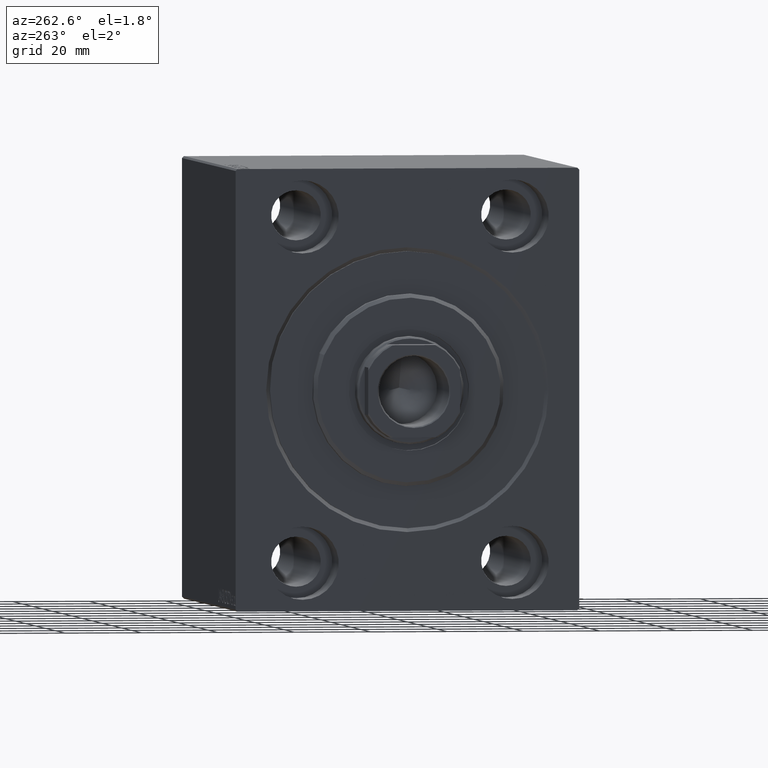
[diagram: clean part render]
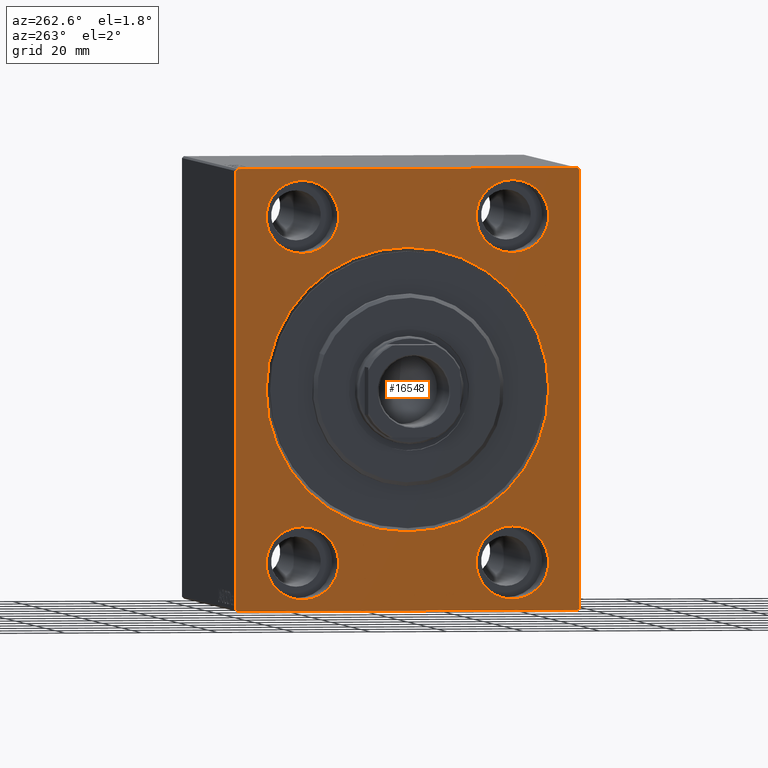
[diagram: same view with one face highlighted and labeled with its STEP entity id]
A machine part, auxiliary view. The second image highlights one B-rep face of the part: STEP entity #16548.
In plain terms, the highlighted planar face has unit normal (1, 0, 0).
Its self-contained STEP definition (entity closure, byte-faithful):
#548 = CIRCLE ( 'NONE', #23949, 9.500000000000001776 ) ;
#620 = VERTEX_POINT ( 'NONE', #1072 ) ;
#895 = ORIENTED_EDGE ( 'NONE', *, *, #31245, .F. ) ;
#976 = CARTESIAN_POINT ( 'NONE',  ( 0.000000000000000000, -27.49999999999998934, 54.50000000000000711 ) ) ;
#1030 = CIRCLE ( 'NONE', #9490, 9.500000000000001776 ) ;
#1072 = CARTESIAN_POINT ( 'NONE',  ( 0.000000000000000000, 44.50000000000001421, -57.50000000000000711 ) ) ;
#1199 = LINE ( 'NONE', #14931, #33862 ) ;
#2309 = EDGE_LOOP ( 'NONE', ( #40872, #11726 ) ) ;
#2610 = DIRECTION ( 'NONE',  ( -1.000000000000000000, 0.000000000000000000, 0.000000000000000000 ) ) ;
#2798 = ORIENTED_EDGE ( 'NONE', *, *, #36277, .F. ) ;
#2818 = VERTEX_POINT ( 'NONE', #976 ) ;
#2909 = DIRECTION ( 'NONE',  ( -1.000000000000000000, 0.000000000000000000, 0.000000000000000000 ) ) ;
#3038 = DIRECTION ( 'NONE',  ( 0.000000000000000000, 1.000000000000000000, 0.000000000000000000 ) ) ;
#3351 = LINE ( 'NONE', #16866, #6688 ) ;
#3840 = DIRECTION ( 'NONE',  ( -0.000000000000000000, -0.7071067811865474617, 0.7071067811865474617 ) ) ;
#3911 = AXIS2_PLACEMENT_3D ( 'NONE', #8046, #24674, #41735 ) ;
#4133 = CIRCLE ( 'NONE', #5513, 9.500000000000001776 ) ;
#4206 = VECTOR ( 'NONE', #42933, 1000.000000000000000 ) ;
#5490 = LINE ( 'NONE', #6139, #34567 ) ;
#5513 = AXIS2_PLACEMENT_3D ( 'NONE', #21843, #8097, #28700 ) ;
#5651 = CARTESIAN_POINT ( 'NONE',  ( 0.000000000000000000, 27.49999999999998934, -35.49999999999998579 ) ) ;
#5710 = CARTESIAN_POINT ( 'NONE',  ( 0.000000000000000000, -45.00000000000000000, 57.49999999999999289 ) ) ;
#6014 = CIRCLE ( 'NONE', #18762, 9.500000000000001776 ) ;
#6139 = CARTESIAN_POINT ( 'NONE',  ( 0.000000000000000000, -45.00000000000000000, -57.50000000000000711 ) ) ;
#6504 = LINE ( 'NONE', #17137, #31627 ) ;
#6521 = LINE ( 'NONE', #42875, #23289 ) ;
#6688 = VECTOR ( 'NONE', #40136, 1000.000000000000000 ) ;
#7088 = EDGE_CURVE ( 'NONE', #33605, #30491, #1030, .T. ) ;
#7307 = ORIENTED_EDGE ( 'NONE', *, *, #33564, .F. ) ;
#7419 = ORIENTED_EDGE ( 'NONE', *, *, #20817, .F. ) ;
#7552 = CARTESIAN_POINT ( 'NONE',  ( 0.000000000000000000, 45.00000000000001421, -57.00000000000003553 ) ) ;
#7980 = DIRECTION ( 'NONE',  ( -1.000000000000000000, 0.000000000000000000, 0.000000000000000000 ) ) ;
#8046 = CARTESIAN_POINT ( 'NONE',  ( 0.000000000000000000, 27.49999999999998934, -44.99999999999998579 ) ) ;
#8097 = DIRECTION ( 'NONE',  ( -1.000000000000000000, 0.000000000000000000, 0.000000000000000000 ) ) ;
#8399 = VERTEX_POINT ( 'NONE', #18980 ) ;
#8440 = DIRECTION ( 'NONE',  ( -1.000000000000000000, 0.000000000000000000, 0.000000000000000000 ) ) ;
#8658 = FACE_BOUND ( 'NONE', #15666, .T. ) ;
#9490 = AXIS2_PLACEMENT_3D ( 'NONE', #19531, #2909, #36356 ) ;
#10071 = EDGE_CURVE ( 'NONE', #2818, #43244, #6014, .T. ) ;
#10695 = CARTESIAN_POINT ( 'NONE',  ( 0.000000000000000000, -27.50000000000000000, -44.99999999999998579 ) ) ;
#10971 = EDGE_CURVE ( 'NONE', #32860, #8399, #18323, .T. ) ;
#10972 = ORIENTED_EDGE ( 'NONE', *, *, #30392, .T. ) ;
#11308 = EDGE_CURVE ( 'NONE', #30895, #21883, #17266, .T. ) ;
#11726 = ORIENTED_EDGE ( 'NONE', *, *, #42337, .F. ) ;
#12522 = DIRECTION ( 'NONE',  ( -0.000000000000000000, 0.7071067811865474617, -0.7071067811865474617 ) ) ;
#13273 = AXIS2_PLACEMENT_3D ( 'NONE', #10695, #41489, #30624 ) ;
#13540 = CARTESIAN_POINT ( 'NONE',  ( 0.000000000000000000, 27.50000000000001066, 35.50000000000000711 ) ) ;
#13650 = EDGE_LOOP ( 'NONE', ( #10972, #19260 ) ) ;
#13655 = CARTESIAN_POINT ( 'NONE',  ( 0.000000000000000000, -27.50000000000000000, -54.49999999999998579 ) ) ;
#14286 = DIRECTION ( 'NONE',  ( 1.000000000000000000, 0.000000000000000000, 0.000000000000000000 ) ) ;
#14420 = CARTESIAN_POINT ( 'NONE',  ( 0.000000000000000000, -44.50000000000002842, -57.50000000000000711 ) ) ;
#14455 = ORIENTED_EDGE ( 'NONE', *, *, #21863, .F. ) ;
#14931 = CARTESIAN_POINT ( 'NONE',  ( 0.000000000000000000, 45.00000000000001421, -57.50000000000000711 ) ) ;
#15317 = FACE_BOUND ( 'NONE', #37989, .T. ) ;
#15666 = EDGE_LOOP ( 'NONE', ( #18295, #2798 ) ) ;
#15743 = DIRECTION ( 'NONE',  ( 1.000000000000000000, 0.000000000000000000, 0.000000000000000000 ) ) ;
#15968 = VERTEX_POINT ( 'NONE', #38691 ) ;
#16548 = ADVANCED_FACE ( 'NONE', ( #25502, #8658, #15317, #35683, #42995, #19289 ), #18859, .F. ) ;
#16866 = CARTESIAN_POINT ( 'NONE',  ( 0.000000000000000000, 45.00000000000000000, 57.50000000000000711 ) ) ;
#17137 = CARTESIAN_POINT ( 'NONE',  ( 0.000000000000000000, -44.50000000000002842, -57.50000000000000711 ) ) ;
#17266 = CIRCLE ( 'NONE', #27896, 37.00000000000003553 ) ;
#17545 = CIRCLE ( 'NONE', #13273, 9.500000000000001776 ) ;
#17810 = DIRECTION ( 'NONE',  ( 0.000000000000000000, 0.000000000000000000, -1.000000000000000000 ) ) ;
#18100 = DIRECTION ( 'NONE',  ( -0.000000000000000000, 0.7071067811865474617, 0.7071067811865474617 ) ) ;
#18295 = ORIENTED_EDGE ( 'NONE', *, *, #43771, .F. ) ;
#18323 = LINE ( 'NONE', #39125, #30017 ) ;
#18527 = EDGE_CURVE ( 'NONE', #24056, #36037, #6504, .T. ) ;
#18762 = AXIS2_PLACEMENT_3D ( 'NONE', #27927, #7980, #18996 ) ;
#18836 = CARTESIAN_POINT ( 'NONE',  ( 0.000000000000000000, 45.00000000000000000, 57.00000000000000711 ) ) ;
#18859 = PLANE ( 'NONE',  #40741 ) ;
#18901 = CARTESIAN_POINT ( 'NONE',  ( 0.000000000000000000, 27.50000000000001066, 54.50000000000000711 ) ) ;
#18980 = CARTESIAN_POINT ( 'NONE',  ( 0.000000000000000000, -44.49999999999997158, 57.49999999999999289 ) ) ;
#18996 = DIRECTION ( 'NONE',  ( 0.000000000000000000, 0.000000000000000000, 1.000000000000000000 ) ) ;
#19260 = ORIENTED_EDGE ( 'NONE', *, *, #11308, .T. ) ;
#19289 = FACE_OUTER_BOUND ( 'NONE', #30788, .T. ) ;
#19292 = VERTEX_POINT ( 'NONE', #5651 ) ;
#19531 = CARTESIAN_POINT ( 'NONE',  ( 0.000000000000000000, 27.50000000000001066, 45.00000000000000711 ) ) ;
#19547 = CARTESIAN_POINT ( 'NONE',  ( 0.000000000000000000, -27.49999999999998934, 35.50000000000000711 ) ) ;
#19721 = CIRCLE ( 'NONE', #43782, 9.500000000000001776 ) ;
#20817 = EDGE_CURVE ( 'NONE', #43244, #2818, #23198, .T. ) ;
#21843 = CARTESIAN_POINT ( 'NONE',  ( 0.000000000000000000, 27.49999999999998934, -44.99999999999998579 ) ) ;
#21863 = EDGE_CURVE ( 'NONE', #30491, #33605, #548, .T. ) ;
#21883 = VERTEX_POINT ( 'NONE', #42854 ) ;
#21961 = DIRECTION ( 'NONE',  ( 0.000000000000000000, 0.000000000000000000, 1.000000000000000000 ) ) ;
#22131 = VERTEX_POINT ( 'NONE', #7552 ) ;
#22625 = DIRECTION ( 'NONE',  ( 0.000000000000000000, 0.000000000000000000, -1.000000000000000000 ) ) ;
#22742 = CARTESIAN_POINT ( 'NONE',  ( 0.000000000000000000, -45.00000000000000000, 56.99999999999999289 ) ) ;
#23198 = CIRCLE ( 'NONE', #26732, 9.500000000000001776 ) ;
#23289 = VECTOR ( 'NONE', #12522, 1000.000000000000114 ) ;
#23361 = EDGE_CURVE ( 'NONE', #15968, #29319, #19721, .T. ) ;
#23365 = EDGE_CURVE ( 'NONE', #24056, #620, #5490, .T. ) ;
#23571 = DIRECTION ( 'NONE',  ( 0.000000000000000000, 0.000000000000000000, 1.000000000000000000 ) ) ;
#23804 = DIRECTION ( 'NONE',  ( 1.000000000000000000, 0.000000000000000000, 0.000000000000000000 ) ) ;
#23949 = AXIS2_PLACEMENT_3D ( 'NONE', #40413, #39755, #23571 ) ;
#24056 = VERTEX_POINT ( 'NONE', #14420 ) ;
#24674 = DIRECTION ( 'NONE',  ( -1.000000000000000000, 0.000000000000000000, 0.000000000000000000 ) ) ;
#25324 = VECTOR ( 'NONE', #32705, 1000.000000000000114 ) ;
#25494 = CARTESIAN_POINT ( 'NONE',  ( 0.000000000000000000, -27.49999999999998934, 45.00000000000000711 ) ) ;
#25502 = FACE_BOUND ( 'NONE', #13650, .T. ) ;
#25753 = EDGE_CURVE ( 'NONE', #43402, #35328, #6521, .T. ) ;
#26586 = CARTESIAN_POINT ( 'NONE',  ( 0.000000000000000000, 4.531193156845210737E-15, -37.00000000000003553 ) ) ;
#26732 = AXIS2_PLACEMENT_3D ( 'NONE', #25494, #8440, #21961 ) ;
#27802 = DIRECTION ( 'NONE',  ( 0.000000000000000000, 0.000000000000000000, -1.000000000000000000 ) ) ;
#27896 = AXIS2_PLACEMENT_3D ( 'NONE', #37552, #14286, #27802 ) ;
#27927 = CARTESIAN_POINT ( 'NONE',  ( 0.000000000000000000, -27.49999999999998934, 45.00000000000000711 ) ) ;
#28045 = EDGE_CURVE ( 'NONE', #22131, #35328, #1199, .T. ) ;
#28231 = DIRECTION ( 'NONE',  ( 0.000000000000000000, -1.206764157201257045E-16, 1.000000000000000000 ) ) ;
#28700 = DIRECTION ( 'NONE',  ( 0.000000000000000000, 0.000000000000000000, 1.000000000000000000 ) ) ;
#29252 = ORIENTED_EDGE ( 'NONE', *, *, #28045, .F. ) ;
#29319 = VERTEX_POINT ( 'NONE', #13655 ) ;
#30017 = VECTOR ( 'NONE', #18100, 1000.000000000000114 ) ;
#30392 = EDGE_CURVE ( 'NONE', #21883, #30895, #38175, .T. ) ;
#30491 = VERTEX_POINT ( 'NONE', #18901 ) ;
#30624 = DIRECTION ( 'NONE',  ( 0.000000000000000000, 0.000000000000000000, 1.000000000000000000 ) ) ;
#30788 = EDGE_LOOP ( 'NONE', ( #895, #36968, #7307, #36736, #29252, #36473, #39242, #42631 ) ) ;
#30895 = VERTEX_POINT ( 'NONE', #26586 ) ;
#31245 = EDGE_CURVE ( 'NONE', #32860, #36037, #36063, .T. ) ;
#31503 = ORIENTED_EDGE ( 'NONE', *, *, #10071, .F. ) ;
#31627 = VECTOR ( 'NONE', #3840, 1000.000000000000114 ) ;
#31813 = AXIS2_PLACEMENT_3D ( 'NONE', #33172, #23804, #17810 ) ;
#32358 = CARTESIAN_POINT ( 'NONE',  ( 0.000000000000000000, 0.000000000000000000, 0.000000000000000000 ) ) ;
#32705 = DIRECTION ( 'NONE',  ( 0.000000000000000000, -0.7071067811865474617, -0.7071067811865474617 ) ) ;
#32860 = VERTEX_POINT ( 'NONE', #22742 ) ;
#33171 = DIRECTION ( 'NONE',  ( 0.000000000000000000, 0.000000000000000000, 1.000000000000000000 ) ) ;
#33172 = CARTESIAN_POINT ( 'NONE',  ( 0.000000000000000000, 0.000000000000000000, 0.000000000000000000 ) ) ;
#33372 = CARTESIAN_POINT ( 'NONE',  ( 0.000000000000000000, 27.49999999999998934, -54.49999999999998579 ) ) ;
#33564 = EDGE_CURVE ( 'NONE', #43402, #8399, #3351, .T. ) ;
#33605 = VERTEX_POINT ( 'NONE', #13540 ) ;
#33862 = VECTOR ( 'NONE', #28231, 1000.000000000000000 ) ;
#34567 = VECTOR ( 'NONE', #3038, 1000.000000000000000 ) ;
#35328 = VERTEX_POINT ( 'NONE', #18836 ) ;
#35595 = LINE ( 'NONE', #42484, #25324 ) ;
#35683 = FACE_BOUND ( 'NONE', #38598, .T. ) ;
#35692 = VERTEX_POINT ( 'NONE', #33372 ) ;
#36037 = VERTEX_POINT ( 'NONE', #42447 ) ;
#36063 = LINE ( 'NONE', #5710, #4206 ) ;
#36277 = EDGE_CURVE ( 'NONE', #35692, #19292, #41410, .T. ) ;
#36356 = DIRECTION ( 'NONE',  ( 0.000000000000000000, 0.000000000000000000, 1.000000000000000000 ) ) ;
#36473 = ORIENTED_EDGE ( 'NONE', *, *, #43018, .T. ) ;
#36736 = ORIENTED_EDGE ( 'NONE', *, *, #25753, .T. ) ;
#36968 = ORIENTED_EDGE ( 'NONE', *, *, #10971, .T. ) ;
#37552 = CARTESIAN_POINT ( 'NONE',  ( 0.000000000000000000, 0.000000000000000000, 0.000000000000000000 ) ) ;
#37989 = EDGE_LOOP ( 'NONE', ( #31503, #7419 ) ) ;
#38175 = CIRCLE ( 'NONE', #31813, 37.00000000000003553 ) ;
#38555 = CARTESIAN_POINT ( 'NONE',  ( 0.000000000000000000, 44.50000000000002842, 57.50000000000000711 ) ) ;
#38598 = EDGE_LOOP ( 'NONE', ( #14455, #41607 ) ) ;
#38691 = CARTESIAN_POINT ( 'NONE',  ( 0.000000000000000000, -27.50000000000000000, -35.49999999999998579 ) ) ;
#39125 = CARTESIAN_POINT ( 'NONE',  ( 0.000000000000000000, -45.00000000000000000, 56.99999999999999289 ) ) ;
#39242 = ORIENTED_EDGE ( 'NONE', *, *, #23365, .F. ) ;
#39755 = DIRECTION ( 'NONE',  ( -1.000000000000000000, 0.000000000000000000, 0.000000000000000000 ) ) ;
#40041 = CARTESIAN_POINT ( 'NONE',  ( 0.000000000000000000, -27.50000000000000000, -44.99999999999998579 ) ) ;
#40136 = DIRECTION ( 'NONE',  ( 0.000000000000000000, -1.000000000000000000, -1.541976423090495387E-16 ) ) ;
#40413 = CARTESIAN_POINT ( 'NONE',  ( 0.000000000000000000, 27.50000000000001066, 45.00000000000000711 ) ) ;
#40741 = AXIS2_PLACEMENT_3D ( 'NONE', #32358, #15743, #22625 ) ;
#40872 = ORIENTED_EDGE ( 'NONE', *, *, #23361, .F. ) ;
#41410 = CIRCLE ( 'NONE', #3911, 9.500000000000001776 ) ;
#41489 = DIRECTION ( 'NONE',  ( -1.000000000000000000, 0.000000000000000000, 0.000000000000000000 ) ) ;
#41607 = ORIENTED_EDGE ( 'NONE', *, *, #7088, .F. ) ;
#41735 = DIRECTION ( 'NONE',  ( 0.000000000000000000, 0.000000000000000000, 1.000000000000000000 ) ) ;
#42337 = EDGE_CURVE ( 'NONE', #29319, #15968, #17545, .T. ) ;
#42447 = CARTESIAN_POINT ( 'NONE',  ( 0.000000000000000000, -45.00000000000000000, -57.00000000000003553 ) ) ;
#42484 = CARTESIAN_POINT ( 'NONE',  ( 0.000000000000000000, 45.00000000000001421, -57.00000000000003553 ) ) ;
#42631 = ORIENTED_EDGE ( 'NONE', *, *, #18527, .T. ) ;
#42854 = CARTESIAN_POINT ( 'NONE',  ( 0.000000000000000000, 0.000000000000000000, 37.00000000000003553 ) ) ;
#42875 = CARTESIAN_POINT ( 'NONE',  ( 0.000000000000000000, 44.50000000000002842, 57.50000000000000711 ) ) ;
#42933 = DIRECTION ( 'NONE',  ( 0.000000000000000000, 0.000000000000000000, -1.000000000000000000 ) ) ;
#42995 = FACE_BOUND ( 'NONE', #2309, .T. ) ;
#43018 = EDGE_CURVE ( 'NONE', #22131, #620, #35595, .T. ) ;
#43244 = VERTEX_POINT ( 'NONE', #19547 ) ;
#43402 = VERTEX_POINT ( 'NONE', #38555 ) ;
#43771 = EDGE_CURVE ( 'NONE', #19292, #35692, #4133, .T. ) ;
#43782 = AXIS2_PLACEMENT_3D ( 'NONE', #40041, #2610, #33171 ) ;